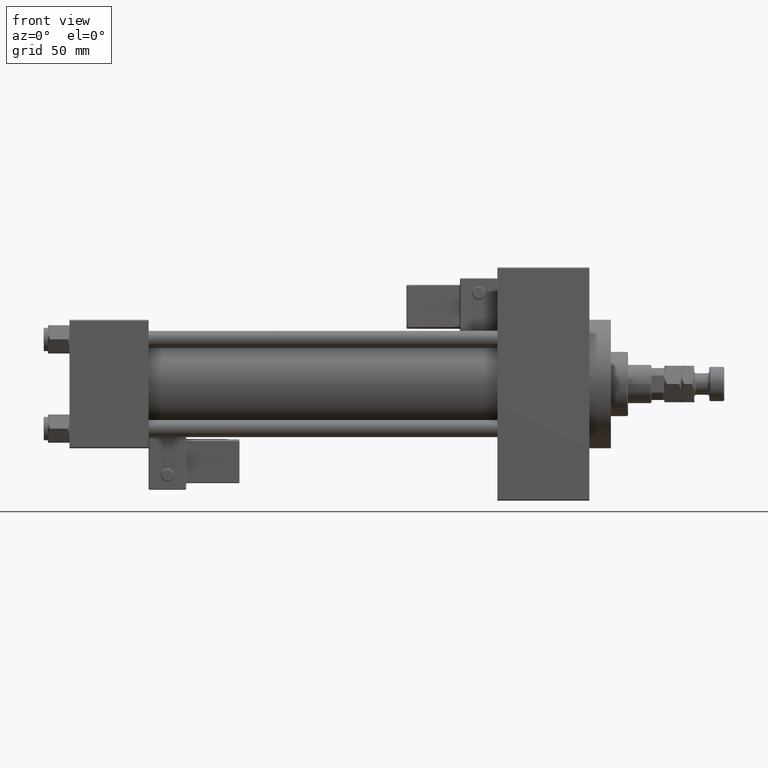
[diagram: clean part render]
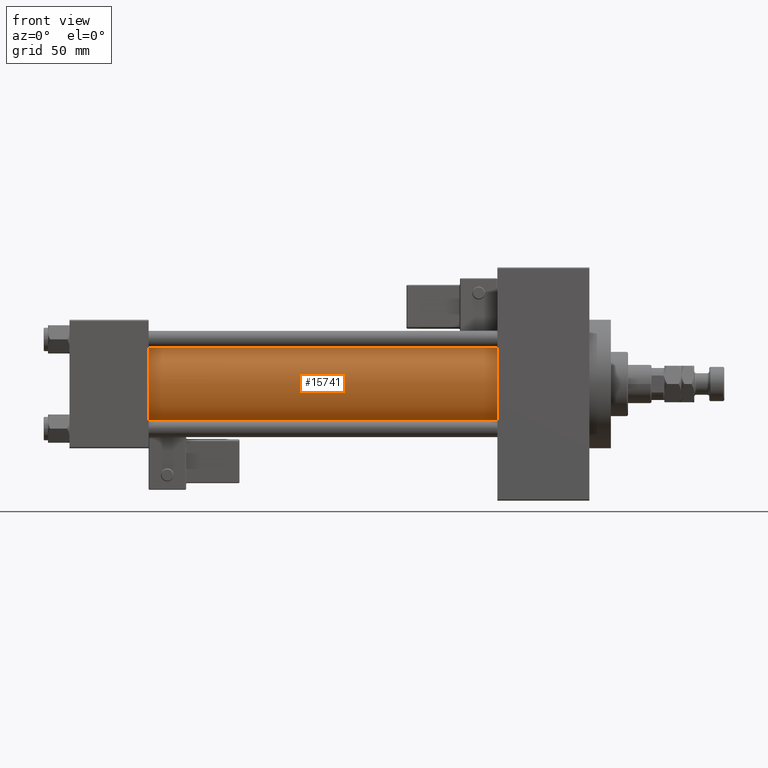
[diagram: same view with one face highlighted and labeled with its STEP entity id]
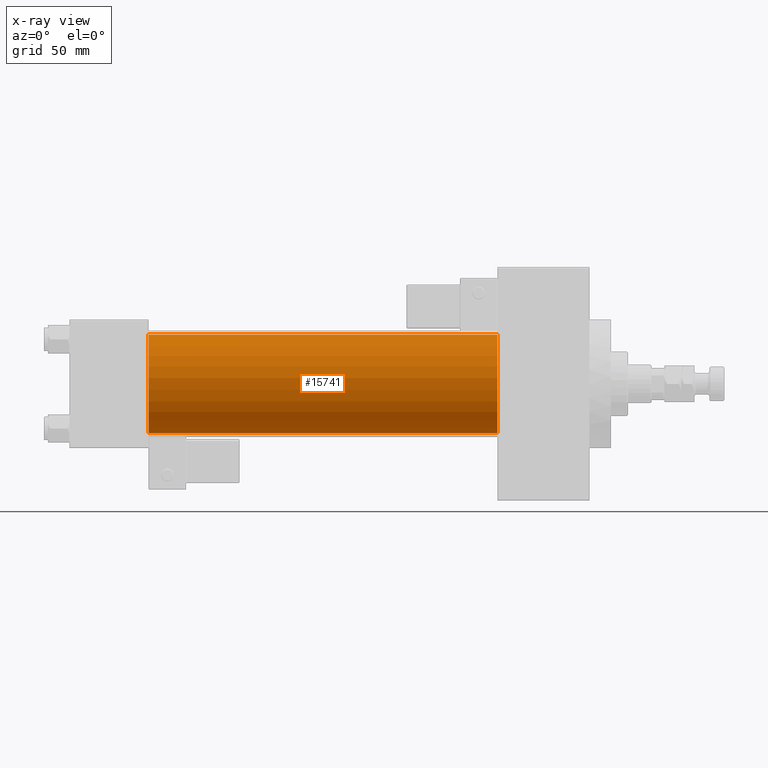
[diagram: x-ray of the same camera — body ghosted, the highlighted face saturated]
A machine part, front view. The second image highlights one B-rep face of the part: STEP entity #15741.
The next image is the same camera in x-ray: the body ghosted, the highlighted face saturated — about 0% of this face is hidden behind the body in this view.
In plain terms, the highlighted cylindrical surface (partial cylindrical patch) has radius 23 mm, axis along (-1, -0, -0).
Its self-contained STEP definition (entity closure, byte-faithful):
#479 = ORIENTED_EDGE ( 'NONE', *, *, #5082, .F. ) ;
#4793 = EDGE_CURVE ( 'NONE', #33207, #5753, #45103, .T. ) ;
#5082 = EDGE_CURVE ( 'NONE', #12832, #21822, #48441, .T. ) ;
#5753 = VERTEX_POINT ( 'NONE', #40770 ) ;
#9235 = VECTOR ( 'NONE', #25370, 1000.000000000000000 ) ;
#12003 = DIRECTION ( 'NONE',  ( 1.000000000000000000, -0.000000000000000000, 0.000000000000000000 ) ) ;
#12761 = CARTESIAN_POINT ( 'NONE',  ( 37.00000000000000711, -2.602085213965210642E-15, 0.000000000000000000 ) ) ;
#12806 = ORIENTED_EDGE ( 'NONE', *, *, #4793, .T. ) ;
#12832 = VERTEX_POINT ( 'NONE', #18614 ) ;
#15014 = EDGE_LOOP ( 'NONE', ( #44287, #479, #21666, #12806 ) ) ;
#15488 = CARTESIAN_POINT ( 'NONE',  ( 200.0000000000000000, 2.146024240737016609E-16, -23.00000000000000000 ) ) ;
#15741 = ADVANCED_FACE ( 'NONE', ( #36721 ), #19700, .T. ) ;
#18614 = CARTESIAN_POINT ( 'NONE',  ( 200.0000000000000000, -2.602085213965210642E-15, 23.00000000000000000 ) ) ;
#19280 = LINE ( 'NONE', #23945, #48169 ) ;
#19700 = CYLINDRICAL_SURFACE ( 'NONE', #23862, 23.00000000000000000 ) ;
#20191 = AXIS2_PLACEMENT_3D ( 'NONE', #47227, #20483, #23876 ) ;
#20467 = LINE ( 'NONE', #24860, #9235 ) ;
#20483 = DIRECTION ( 'NONE',  ( 1.000000000000000000, 0.000000000000000000, 0.000000000000000000 ) ) ;
#21137 = DIRECTION ( 'NONE',  ( 0.000000000000000000, 0.000000000000000000, 1.000000000000000000 ) ) ;
#21666 = ORIENTED_EDGE ( 'NONE', *, *, #39352, .T. ) ;
#21822 = VERTEX_POINT ( 'NONE', #15488 ) ;
#22739 = AXIS2_PLACEMENT_3D ( 'NONE', #12761, #12003, #23942 ) ;
#23550 = DIRECTION ( 'NONE',  ( -1.000000000000000000, -0.000000000000000000, -0.000000000000000000 ) ) ;
#23862 = AXIS2_PLACEMENT_3D ( 'NONE', #35528, #23550, #21137 ) ;
#23876 = DIRECTION ( 'NONE',  ( 0.000000000000000000, 0.000000000000000000, -1.000000000000000000 ) ) ;
#23942 = DIRECTION ( 'NONE',  ( 0.000000000000000000, 0.000000000000000000, 1.000000000000000000 ) ) ;
#23945 = CARTESIAN_POINT ( 'NONE',  ( 200.0000000000000000, -2.602085213965210642E-15, 23.00000000000000000 ) ) ;
#24860 = CARTESIAN_POINT ( 'NONE',  ( 200.0000000000000000, 2.146024240737016609E-16, -23.00000000000000000 ) ) ;
#25370 = DIRECTION ( 'NONE',  ( -1.000000000000000000, -0.000000000000000000, -0.000000000000000000 ) ) ;
#27840 = DIRECTION ( 'NONE',  ( -1.000000000000000000, -0.000000000000000000, -0.000000000000000000 ) ) ;
#33207 = VERTEX_POINT ( 'NONE', #40910 ) ;
#35528 = CARTESIAN_POINT ( 'NONE',  ( 200.0000000000000000, -2.602085213965210642E-15, 0.000000000000000000 ) ) ;
#36721 = FACE_OUTER_BOUND ( 'NONE', #15014, .T. ) ;
#37285 = EDGE_CURVE ( 'NONE', #21822, #5753, #20467, .T. ) ;
#39352 = EDGE_CURVE ( 'NONE', #12832, #33207, #19280, .T. ) ;
#40770 = CARTESIAN_POINT ( 'NONE',  ( 37.00000000000000711, 2.146024240737016609E-16, -23.00000000000000000 ) ) ;
#40910 = CARTESIAN_POINT ( 'NONE',  ( 37.00000000000000711, -2.602085213965210642E-15, 23.00000000000000000 ) ) ;
#44287 = ORIENTED_EDGE ( 'NONE', *, *, #37285, .F. ) ;
#45103 = CIRCLE ( 'NONE', #22739, 23.00000000000000000 ) ;
#47227 = CARTESIAN_POINT ( 'NONE',  ( 200.0000000000000000, -2.602085213965210642E-15, 0.000000000000000000 ) ) ;
#48169 = VECTOR ( 'NONE', #27840, 1000.000000000000000 ) ;
#48441 = CIRCLE ( 'NONE', #20191, 23.00000000000000000 ) ;